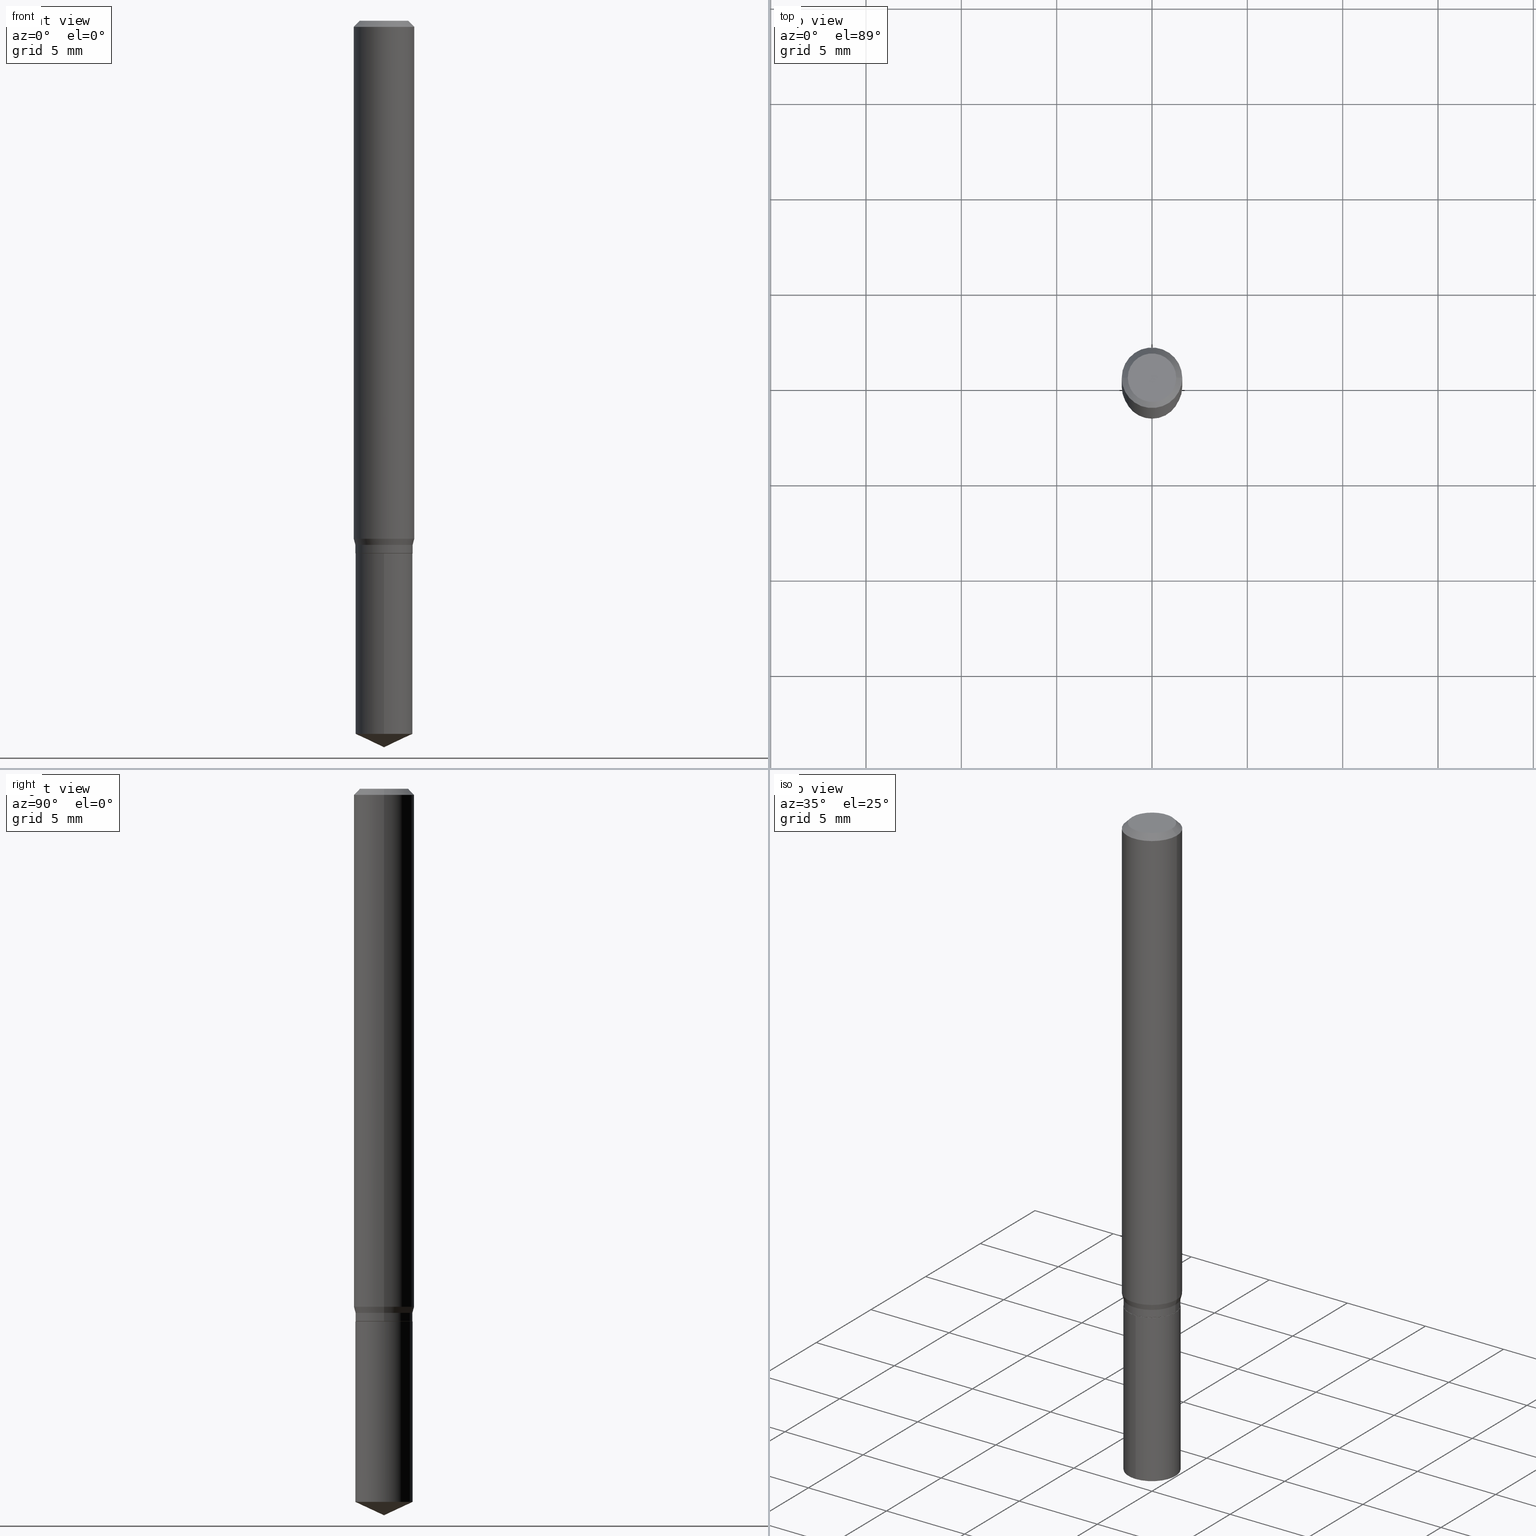
[diagram: canonical four-view strip — front | top / right | iso, engineering-drawing reading convention]
A machine part, canonical four-view strip (front | top / right | iso — engineering-drawing reading convention). The complete STEP part file that produces these views, byte-faithful:
ISO-10303-21;
HEADER;
FILE_DESCRIPTION (( 'STEP AP203' ),
    '1' );
FILE_NAME ('07394.STEP',
    '2024-04-23T21:01:14',
    ( '' ),
    ( '' ),
    'SwSTEP 2.0',
    'SolidWorks 2023',
    '' );
FILE_SCHEMA (( 'CONFIG_CONTROL_DESIGN' ));
ENDSEC;

DATA;
#1 = DIRECTION ( 'NONE',  ( -2.445468806185136877E-29, 3.491481338843145188E-15, 1.000000000000000000 ) ) ;
#2 = CARTESIAN_POINT ( 'NONE',  ( 0.05904999999999999832, -4.251227678175412729E-15, -1.099499999999999922 ) ) ;
#3 = LINE ( 'NONE', #219, #316 ) ;
#4 =( GEOMETRIC_REPRESENTATION_CONTEXT ( 3 ) GLOBAL_UNCERTAINTY_ASSIGNED_CONTEXT ( ( #320 ) ) GLOBAL_UNIT_ASSIGNED_CONTEXT ( ( #292, #488, #180 ) ) REPRESENTATION_CONTEXT ( 'NONE', 'WORKASPACE' ) );
#5 = DIRECTION ( 'NONE',  ( 0.2588190451025207395, 1.565188264969626109E-15, 0.9659258262890682012 ) ) ;
#6 = APPLICATION_CONTEXT ( 'configuration controlled 3d designs of mechanical parts and assemblies' ) ;
#7 = EDGE_CURVE ( 'NONE', #168, #473, #228, .T. ) ;
#8 = CARTESIAN_POINT ( 'NONE',  ( 3.893286209682126177E-47, -5.558580879666067980E-33, -1.592040838891559689E-18 ) ) ;
#9 = EDGE_CURVE ( 'NONE', #143, #434, #209, .T. ) ;
#10 = EDGE_CURVE ( 'NONE', #479, #210, #298, .T. ) ;
#11 = CARTESIAN_POINT ( 'NONE',  ( -0.04999999999999999584, 3.709698922520826725E-16, -1.592040838894077649E-18 ) ) ;
#12 = VECTOR ( 'NONE', #120, 39.37007874015748143 ) ;
#13 = PLANE ( 'NONE',  #93 ) ;
#14 = CARTESIAN_POINT ( 'NONE',  ( -0.06250000000000006939, 4.440892098500631092E-16, -3.074334431409319267E-30 ) ) ;
#15 = DIRECTION ( 'NONE',  ( -6.982962677686265922E-15, -1.000000000000000000, 4.626330217890369336E-15 ) ) ;
#16 = DIRECTION ( 'NONE',  ( -2.445468806185136597E-29, 3.491481338843145583E-15, 1.000000000000000000 ) ) ;
#17 = CONICAL_SURFACE ( 'NONE', #380, 84.42940631927396566, 1.134464013796314230 ) ;
#18 = CIRCLE ( 'NONE', #446, 0.05904999999999999832 ) ;
#19 = CC_DESIGN_PERSON_AND_ORGANIZATION_ASSIGNMENT ( #363, #65, ( #373 ) ) ;
#20 = DIRECTION ( 'NONE',  ( 2.445399690415121250E-29, -3.491580316559632610E-15, -1.000000000000000000 ) ) ;
#21 = VERTEX_POINT ( 'NONE', #2 ) ;
#22 = EDGE_CURVE ( 'NONE', #448, #328, #306, .T. ) ;
#23 = FACE_OUTER_BOUND ( 'NONE', #311, .T. ) ;
#24 = VERTEX_POINT ( 'NONE', #148 ) ;
#25 = PERSON_AND_ORGANIZATION_ROLE ( 'design_supplier' ) ;
#26 = CARTESIAN_POINT ( 'NONE',  ( 2.690015686803650369E-29, -3.840629472727460101E-15, -1.100000000000000089 ) ) ;
#27 = EDGE_LOOP ( 'NONE', ( #490, #132, #353, #453 ) ) ;
#28 = DIRECTION ( 'NONE',  ( -2.438088387897960049E-29, 3.491481338843145188E-15, 1.000000000000000000 ) ) ;
#29 = ORIENTED_EDGE ( 'NONE', *, *, #424, .T. ) ;
#30 = DATE_TIME_ROLE ( 'classification_date' ) ;
#31 = CARTESIAN_POINT ( 'NONE',  ( -0.05854999999999999788, -3.421957473765810306E-15, -1.100000000000000089 ) ) ;
#32 = ORIENTED_EDGE ( 'NONE', *, *, #319, .F. ) ;
#33 = APPROVAL_DATE_TIME ( #393, #379 ) ;
#34 = FACE_OUTER_BOUND ( 'NONE', #70, .T. ) ;
#35 = ORIENTED_EDGE ( 'NONE', *, *, #22, .F. ) ;
#36 = ORIENTED_EDGE ( 'NONE', *, *, #460, .F. ) ;
#37 = DIRECTION ( 'NONE',  ( 0.000000000000000000, 0.000000000000000000, 1.000000000000000000 ) ) ;
#38 = DIRECTION ( 'NONE',  ( -2.445468806185136597E-29, 3.491481338843145583E-15, 1.000000000000000000 ) ) ;
#39 = DIRECTION ( 'NONE',  ( 2.445468806185136597E-29, -3.491481338843145583E-15, -1.000000000000000000 ) ) ;
#40 = AXIS2_PLACEMENT_3D ( 'NONE', #459, #38, #177 ) ;
#41 = APPROVAL_PERSON_ORGANIZATION ( #130, #379, #277 ) ;
#42 = ADVANCED_FACE ( 'NONE', ( #262 ), #301, .T. ) ;
#43 = DIRECTION ( 'NONE',  ( 1.000000000000000000, -6.982962677686265133E-15, 0.000000000000000000 ) ) ;
#44 = DIRECTION ( 'NONE',  ( -2.445468806185136597E-29, 3.491481338843145583E-15, 1.000000000000000000 ) ) ;
#45 = EDGE_CURVE ( 'NONE', #94, #21, #403, .T. ) ;
#46 = DIRECTION ( 'NONE',  ( 0.7071067811865453523, -7.319954787623248157E-15, -0.7071067811865496822 ) ) ;
#47 = CIRCLE ( 'NONE', #429, 0.06250000000000000000 ) ;
#48 = DIRECTION ( 'NONE',  ( -2.445468806185136597E-29, 3.491481338843145583E-15, 1.000000000000000000 ) ) ;
#49 = VECTOR ( 'NONE', #1, 39.37007874015748143 ) ;
#50 = CYLINDRICAL_SURFACE ( 'NONE', #158, 0.05904999999999999832 ) ;
#51 = DIRECTION ( 'NONE',  ( -6.982962677686265922E-15, -1.000000000000000000, 4.626330217890369336E-15 ) ) ;
#52 = CARTESIAN_POINT ( 'NONE',  ( 3.056836007731440539E-31, -4.364351673553960451E-17, -0.01250000000000008049 ) ) ;
#53 = AXIS2_PLACEMENT_3D ( 'NONE', #73, #334, #289 ) ;
#54 = CIRCLE ( 'NONE', #360, 0.05904999999999999832 ) ;
#55 = EDGE_CURVE ( 'NONE', #328, #318, #261, .T. ) ;
#56 = DIRECTION ( 'NONE',  ( 1.000000000000000000, -6.982962677686264344E-15, 0.000000000000000000 ) ) ;
#57 = ORIENTED_EDGE ( 'NONE', *, *, #272, .F. ) ;
#58 = LINE ( 'NONE', #485, #95 ) ;
#59 = ORIENTED_EDGE ( 'NONE', *, *, #319, .T. ) ;
#60 = CALENDAR_DATE ( 2024, 23, 4 ) ;
#61 = DIRECTION ( 'NONE',  ( -2.445399690415121530E-29, 3.491580316559632610E-15, 1.000000000000000000 ) ) ;
#62 = EDGE_CURVE ( 'NONE', #318, #362, #104, .T. ) ;
#63 = ORIENTED_EDGE ( 'NONE', *, *, #201, .T. ) ;
#64 = CC_DESIGN_APPROVAL ( #416, ( #332 ) ) ;
#65 = PERSON_AND_ORGANIZATION_ROLE ( 'design_owner' ) ;
#66 = CARTESIAN_POINT ( 'NONE',  ( 0.000000000000000000, 0.000000000000000000, 0.000000000000000000 ) ) ;
#67 = EDGE_LOOP ( 'NONE', ( #413, #59, #377, #273 ) ) ;
#68 = APPROVAL_STATUS ( 'not_yet_approved' ) ;
#69 = LENGTH_MEASURE_WITH_UNIT ( LENGTH_MEASURE( 0.02539999999999999897 ), #371 );
#70 = EDGE_LOOP ( 'NONE', ( #242, #381, #214, #35 ) ) ;
#71 = EDGE_CURVE ( 'NONE', #210, #24, #186, .T. ) ;
#72 = CARTESIAN_POINT ( 'NONE',  ( 3.668099535622682715E-29, -5.237370474839449507E-15, -1.500000000000000222 ) ) ;
#73 = CARTESIAN_POINT ( 'NONE',  ( 2.688792952400557567E-29, -3.838883732058038598E-15, -1.099499999999999922 ) ) ;
#74 = VECTOR ( 'NONE', #154, 39.37007874015748143 ) ;
#75 = LOCAL_TIME ( 17, 1, 14.00000000000000000, #408 ) ;
#76 = ORIENTED_EDGE ( 'NONE', *, *, #411, .F. ) ;
#77 = EDGE_CURVE ( 'NONE', #362, #318, #113, .T. ) ;
#78 = CARTESIAN_POINT ( 'NONE',  ( 4.195754854663751396E-16, 0.05904999999999614724, -1.100000000000000311 ) ) ;
#79 = CC_DESIGN_DATE_AND_TIME_ASSIGNMENT ( #365, #30, ( #382 ) ) ;
#80 = DIRECTION ( 'NONE',  ( -2.445468806185136597E-29, 3.491481338843145583E-15, 1.000000000000000000 ) ) ;
#81 = ADVANCED_FACE ( 'NONE', ( #87 ), #17, .T. ) ;
#82 = DIRECTION ( 'NONE',  ( -2.445468806185136597E-29, 3.491481338843145583E-15, 1.000000000000000000 ) ) ;
#83 = CONICAL_SURFACE ( 'NONE', #420, 0.05904999999999999832, 0.2617993877991494633 ) ;
#84 = VECTOR ( 'NONE', #139, 39.37007874015748854 ) ;
#85 = DIRECTION ( 'NONE',  ( -6.982962677686267499E-15, -1.000000000000000000, 3.520397390770469253E-15 ) ) ;
#86 = FACE_OUTER_BOUND ( 'NONE', #258, .T. ) ;
#87 = FACE_OUTER_BOUND ( 'NONE', #135, .T. ) ;
#88 = AXIS2_PLACEMENT_3D ( 'NONE', #267, #465, #340 ) ;
#89 = DIRECTION ( 'NONE',  ( -6.982962677686267499E-15, -1.000000000000000000, 3.520397390770469253E-15 ) ) ;
#90 = CARTESIAN_POINT ( 'NONE',  ( 2.688792952400557567E-29, -3.838883732058038598E-15, -1.099499999999999922 ) ) ;
#91 = CARTESIAN_POINT ( 'NONE',  ( -0.05854999999999999788, -3.424606700939921901E-15, -1.100000000000000089 ) ) ;
#92 = CYLINDRICAL_SURFACE ( 'NONE', #374, 0.06250000000000006939 ) ;
#93 = AXIS2_PLACEMENT_3D ( 'NONE', #192, #189, #384 ) ;
#94 = VERTEX_POINT ( 'NONE', #425 ) ;
#95 = VECTOR ( 'NONE', #166, 39.37007874015748854 ) ;
#96 = COORDINATED_UNIVERSAL_TIME_OFFSET ( 5, 0, .BEHIND. ) ;
#97 = CARTESIAN_POINT ( 'NONE',  ( 0.06250000000000012490, -4.170310589546995450E-15, -1.069424424713886879 ) ) ;
#98 = EDGE_LOOP ( 'NONE', ( #322, #415, #29, #291 ) ) ;
#99 = DATE_AND_TIME ( #60, #75 ) ;
#100 = DIRECTION ( 'NONE',  ( -2.445468806185136597E-29, 3.491481338843145583E-15, 1.000000000000000000 ) ) ;
#101 = ORIENTED_EDGE ( 'NONE', *, *, #227, .T. ) ;
#102 = CARTESIAN_POINT ( 'NONE',  ( 3.600840339969019464E-29, -5.141119304019454113E-15, -1.472464532785947355 ) ) ;
#103 = ORIENTED_EDGE ( 'NONE', *, *, #213, .T. ) ;
#104 = CIRCLE ( 'NONE', #294, 0.06250000000000012490 ) ;
#105 = VECTOR ( 'NONE', #123, 39.37007874015748143 ) ;
#106 = APPROVAL_DATE_TIME ( #125, #164 ) ;
#107 = ORIENTED_EDGE ( 'NONE', *, *, #462, .F. ) ;
#108 = CARTESIAN_POINT ( 'NONE',  ( -4.123439461173471128E-16, -0.05905000000000384247, -1.099999999999999645 ) ) ;
#109 = ORIENTED_EDGE ( 'NONE', *, *, #388, .F. ) ;
#110 = CARTESIAN_POINT ( 'NONE',  ( 3.668099535622682155E-29, -5.237370474839448718E-15, -1.500000000000000222 ) ) ;
#111 = DIRECTION ( 'NONE',  ( -2.445468806185136597E-29, 3.491481338843145583E-15, 1.000000000000000000 ) ) ;
#112 = ORIENTED_EDGE ( 'NONE', *, *, #10, .F. ) ;
#113 = CIRCLE ( 'NONE', #157, 0.06250000000000012490 ) ;
#114 = PRODUCT_DEFINITION_FORMATION_WITH_SPECIFIED_SOURCE ( 'ANY', '', #373, .NOT_KNOWN. ) ;
#115 = CARTESIAN_POINT ( 'NONE',  ( 3.056836007731440539E-31, -4.364351673553960451E-17, -0.01250000000000008049 ) ) ;
#116 = CARTESIAN_POINT ( 'NONE',  ( 0.05854999999999999788, -4.249481937505991226E-15, -1.100000000000000089 ) ) ;
#117 = CARTESIAN_POINT ( 'NONE',  ( 2.690015686803650369E-29, -3.840629472727460101E-15, -1.100000000000000089 ) ) ;
#118 = CLOSED_SHELL ( 'NONE', ( #478, #418, #385, #451, #369, #464, #140, #390, #42, #193, #432, #309 ) ) ;
#119 = ORGANIZATION ( 'UNSPECIFIED', 'UNSPECIFIED', '' ) ;
#120 = DIRECTION ( 'NONE',  ( -2.445468806185136877E-29, 3.491481338843145188E-15, 1.000000000000000000 ) ) ;
#121 = AXIS2_PLACEMENT_3D ( 'NONE', #472, #126, #275 ) ;
#122 = DIRECTION ( 'NONE',  ( -2.445468806185136597E-29, 3.491481338843145583E-15, 1.000000000000000000 ) ) ;
#123 = DIRECTION ( 'NONE',  ( -0.7071067811865453523, 2.468850131082234184E-15, -0.7071067811865496822 ) ) ;
#124 = ORIENTED_EDGE ( 'NONE', *, *, #7, .F. ) ;
#125 = DATE_AND_TIME ( #358, #153 ) ;
#126 = DIRECTION ( 'NONE',  ( -2.445468806185136597E-29, 3.491481338843145583E-15, 1.000000000000000000 ) ) ;
#127 = CIRCLE ( 'NONE', #359, 0.05904999999999999832 ) ;
#128 = ORIENTED_EDGE ( 'NONE', *, *, #71, .F. ) ;
#129 = LOCAL_TIME ( 17, 1, 14.00000000000000000, #243 ) ;
#130 = PERSON_AND_ORGANIZATION ( #205, #119 ) ;
#131 = DIRECTION ( 'NONE',  ( 1.000000000000000000, -6.982962677686266711E-15, 4.876176775795935793E-29 ) ) ;
#132 = ORIENTED_EDGE ( 'NONE', *, *, #370, .T. ) ;
#133 = DESIGN_CONTEXT ( 'detailed design', #288, 'design' ) ;
#134 = CARTESIAN_POINT ( 'NONE',  ( -0.05904999999999999832, -3.389281507077648455E-15, -1.082300000000000040 ) ) ;
#135 = EDGE_LOOP ( 'NONE', ( #112, #489, #200 ) ) ;
#136 = DIRECTION ( 'NONE',  ( -6.982962677686265922E-15, -1.000000000000000000, 4.626330217890369336E-15 ) ) ;
#137 = ORIENTED_EDGE ( 'NONE', *, *, #426, .T. ) ;
#138 = AXIS2_PLACEMENT_3D ( 'NONE', #431, #61, #352 ) ;
#139 = DIRECTION ( 'NONE',  ( 0.7071067811865232589, -2.468850131082003836E-15, 0.7071067811865715536 ) ) ;
#140 = ADVANCED_FACE ( 'NONE', ( #86 ), #83, .T. ) ;
#141 = DIRECTION ( 'NONE',  ( -1.000000000000000000, 6.982962677686266711E-15, 0.000000000000000000 ) ) ;
#142 = DIRECTION ( 'NONE',  ( -2.445468806185136597E-29, 3.491481338843145583E-15, 1.000000000000000000 ) ) ;
#143 = VERTEX_POINT ( 'NONE', #11 ) ;
#144 = VERTEX_POINT ( 'NONE', #391 ) ;
#145 = VECTOR ( 'NONE', #256, 39.37007874015748143 ) ;
#146 = AXIS2_PLACEMENT_3D ( 'NONE', #356, #199, #56 ) ;
#147 = CARTESIAN_POINT ( 'NONE',  ( 0.06250000000000000000, -4.800786840909312308E-16, -0.01250000000000008049 ) ) ;
#148 = CARTESIAN_POINT ( 'NONE',  ( -4.123439461173471128E-16, -0.05905000000000384247, -1.099999999999999645 ) ) ;
#149 = ORIENTED_EDGE ( 'NONE', *, *, #426, .F. ) ;
#150 = LINE ( 'NONE', #14, #74 ) ;
#151 = CIRCLE ( 'NONE', #221, 0.05904999999999999832 ) ;
#152 = EDGE_CURVE ( 'NONE', #24, #461, #455, .T. ) ;
#153 = LOCAL_TIME ( 17, 1, 14.00000000000000000, #206 ) ;
#154 = DIRECTION ( 'NONE',  ( -2.445468806185136877E-29, 3.491481338843145188E-15, 1.000000000000000000 ) ) ;
#155 = DIRECTION ( 'NONE',  ( -2.445468806185136597E-29, 3.491481338843145583E-15, 1.000000000000000000 ) ) ;
#156 = CARTESIAN_POINT ( 'NONE',  ( 0.05904999999999999832, -4.123439461173740327E-16, 2.879382386107500220E-30 ) ) ;
#157 = AXIS2_PLACEMENT_3D ( 'NONE', #337, #16, #265 ) ;
#158 = AXIS2_PLACEMENT_3D ( 'NONE', #194, #343, #15 ) ;
#159 = DIRECTION ( 'NONE',  ( 1.000000000000000000, -6.982962677686265133E-15, 0.000000000000000000 ) ) ;
#160 = CYLINDRICAL_SURFACE ( 'NONE', #475, 0.06250000000000006939 ) ;
#161 = EDGE_LOOP ( 'NONE', ( #313, #101, #329, #57 ) ) ;
#162 = CYLINDRICAL_SURFACE ( 'NONE', #179, 0.05904999999999999832 ) ;
#163 = ORIENTED_EDGE ( 'NONE', *, *, #471, .T. ) ;
#164 = APPROVAL ( #325, 'UNSPECIFIED' ) ;
#165 = PERSON_AND_ORGANIZATION_ROLE ( 'classification_officer' ) ;
#166 = DIRECTION ( 'NONE',  ( -0.2588190451025207395, 5.211531920934546309E-15, 0.9659258262890682012 ) ) ;
#167 = AXIS2_PLACEMENT_3D ( 'NONE', #378, #39, #141 ) ;
#168 = VERTEX_POINT ( 'NONE', #386 ) ;
#169 = CONICAL_SURFACE ( 'NONE', #327, 0.05854999999999999788, 0.7853981633974141952 ) ;
#170 = PERSON_AND_ORGANIZATION ( #205, #119 ) ;
#171 = DIRECTION ( 'NONE',  ( -6.982962677686265922E-15, -1.000000000000000000, 4.626330217890369336E-15 ) ) ;
#172 = ORIENTED_EDGE ( 'NONE', *, *, #77, .T. ) ;
#173 = EDGE_CURVE ( 'NONE', #461, #24, #274, .T. ) ;
#174 = DIRECTION ( 'NONE',  ( -2.445399690415121530E-29, 3.491580316559632610E-15, 1.000000000000000000 ) ) ;
#175 = EDGE_LOOP ( 'NONE', ( #109, #357 ) ) ;
#176 = DIRECTION ( 'NONE',  ( 1.000000000000000000, -6.982962677686266711E-15, 4.876176775795936353E-29 ) ) ;
#177 = DIRECTION ( 'NONE',  ( 1.000000000000000000, -6.982962677686266711E-15, 0.000000000000000000 ) ) ;
#178 = AXIS2_PLACEMENT_3D ( 'NONE', #8, #111, #182 ) ;
#179 = AXIS2_PLACEMENT_3D ( 'NONE', #437, #100, #249 ) ;
#180 =( NAMED_UNIT ( * ) SI_UNIT ( $, .STERADIAN. ) SOLID_ANGLE_UNIT ( ) );
#181 = ORIENTED_EDGE ( 'NONE', *, *, #460, .T. ) ;
#182 = DIRECTION ( 'NONE',  ( 1.000000000000000000, -6.982962677686265922E-15, 4.875957971899673662E-29 ) ) ;
#183 = APPLICATION_PROTOCOL_DEFINITION ( 'international standard', 'config_control_design', 1994, #6 ) ;
#184 = ORIENTED_EDGE ( 'NONE', *, *, #266, .F. ) ;
#185 = VECTOR ( 'NONE', #5, 39.37007874015748854 ) ;
#186 = LINE ( 'NONE', #108, #145 ) ;
#187 = CC_DESIGN_DATE_AND_TIME_ASSIGNMENT ( #99, #399, ( #332 ) ) ;
#188 = DIRECTION ( 'NONE',  ( 1.000000000000000000, -6.982962677686264344E-15, 0.000000000000000000 ) ) ;
#189 = DIRECTION ( 'NONE',  ( 2.438088387897960049E-29, -3.491481338843145188E-15, -1.000000000000000000 ) ) ;
#190 = CONICAL_SURFACE ( 'NONE', #474, 84.42940631927396566, 1.134464013796314230 ) ;
#191 = VECTOR ( 'NONE', #230, 39.37007874015748143 ) ;
#192 = CARTESIAN_POINT ( 'NONE',  ( 1.946643104841063088E-47, -2.779290439833033990E-33, -7.960204194457798443E-19 ) ) ;
#193 = ADVANCED_FACE ( 'NONE', ( #195 ), #13, .F. ) ;
#194 = CARTESIAN_POINT ( 'NONE',  ( 2.690015686803650369E-29, -3.840629472727460101E-15, -1.100000000000000089 ) ) ;
#195 = FACE_OUTER_BOUND ( 'NONE', #299, .T. ) ;
#196 = VECTOR ( 'NONE', #46, 39.37007874015748143 ) ;
#197 = LINE ( 'NONE', #91, #456 ) ;
#198 = PERSON_AND_ORGANIZATION ( #205, #119 ) ;
#199 = DIRECTION ( 'NONE',  ( -2.445468806185136597E-29, 3.491481338843145583E-15, 1.000000000000000000 ) ) ;
#200 = ORIENTED_EDGE ( 'NONE', *, *, #346, .F. ) ;
#201 = EDGE_CURVE ( 'NONE', #434, #473, #342, .T. ) ;
#202 = APPROVAL_STATUS ( 'not_yet_approved' ) ;
#203 = FACE_OUTER_BOUND ( 'NONE', #419, .T. ) ;
#204 = ORIENTED_EDGE ( 'NONE', *, *, #152, .F. ) ;
#205 = PERSON ( 'UNSPECIFIED', 'UNSPECIFIED', 'UNSPECIFIED', ('UNSPECIFIED'), ('UNSPECIFIED'), ('UNSPECIFIED') ) ;
#206 = COORDINATED_UNIVERSAL_TIME_OFFSET ( 5, 0, .BEHIND. ) ;
#207 = PLANE ( 'NONE',  #341 ) ;
#208 = EDGE_CURVE ( 'NONE', #362, #168, #150, .T. ) ;
#209 = CIRCLE ( 'NONE', #178, 0.04999999999999999584 ) ;
#210 = VERTEX_POINT ( 'NONE', #466 ) ;
#211 = DATE_AND_TIME ( #252, #404 ) ;
#212 = FACE_OUTER_BOUND ( 'NONE', #175, .T. ) ;
#213 = EDGE_CURVE ( 'NONE', #324, #217, #347, .T. ) ;
#214 = ORIENTED_EDGE ( 'NONE', *, *, #272, .T. ) ;
#215 = CALENDAR_DATE ( 2024, 23, 4 ) ;
#216 = DIRECTION ( 'NONE',  ( 1.000000000000000000, -6.982962677686265133E-15, 0.000000000000000000 ) ) ;
#217 = VERTEX_POINT ( 'NONE', #116 ) ;
#218 = EDGE_CURVE ( 'NONE', #21, #94, #151, .T. ) ;
#219 = CARTESIAN_POINT ( 'NONE',  ( 3.668252923656895710E-29, -5.237152723863177100E-15, -1.500000000000000222 ) ) ;
#220 = ORIENTED_EDGE ( 'NONE', *, *, #22, .T. ) ;
#221 = AXIS2_PLACEMENT_3D ( 'NONE', #90, #308, #159 ) ;
#222 = CIRCLE ( 'NONE', #146, 0.05854999999999999788 ) ;
#223 = CARTESIAN_POINT ( 'NONE',  ( 0.000000000000000000, 0.000000000000000000, 0.000000000000000000 ) ) ;
#224 = EDGE_LOOP ( 'NONE', ( #149, #63, #398, #285 ) ) ;
#225 = DIRECTION ( 'NONE',  ( -2.445399690415121810E-29, 3.491580316559632610E-15, 1.000000000000000000 ) ) ;
#226 = DIRECTION ( 'NONE',  ( 1.000000000000000000, -6.982962677686264344E-15, 0.000000000000000000 ) ) ;
#227 = EDGE_CURVE ( 'NONE', #94, #448, #304, .T. ) ;
#228 = CIRCLE ( 'NONE', #40, 0.06250000000000000000 ) ;
#229 = CONICAL_SURFACE ( 'NONE', #240, 0.05904999999999999832, 0.2617993877991494633 ) ;
#230 = DIRECTION ( 'NONE',  ( -2.445468806185136877E-29, 3.491481338843145188E-15, 1.000000000000000000 ) ) ;
#231 = ADVANCED_FACE ( 'NONE', ( #427 ), #190, .T. ) ;
#232 = DIRECTION ( 'NONE',  ( -2.445399690415121530E-29, 3.491580316559632610E-15, 1.000000000000000000 ) ) ;
#233 = CARTESIAN_POINT ( 'NONE',  ( 2.646730888934173716E-29, -3.778830253029936509E-15, -1.082300000000000040 ) ) ;
#234 = CONICAL_SURFACE ( 'NONE', #468, 0.06250000000000000000, 0.7853981633974452814 ) ;
#235 = DIRECTION ( 'NONE',  ( 1.000000000000000000, -6.982962677686265133E-15, 0.000000000000000000 ) ) ;
#236 = CARTESIAN_POINT ( 'NONE',  ( -9.260740279983036507E-28, 1.322265303911854087E-13, 37.87007874015748143 ) ) ;
#237 = DIRECTION ( 'NONE',  ( -0.7071067811865232589, 7.493145998870265808E-15, 0.7071067811865715536 ) ) ;
#238 = COORDINATED_UNIVERSAL_TIME_OFFSET ( 5, 0, .BEHIND. ) ;
#239 = AXIS2_PLACEMENT_3D ( 'NONE', #117, #339, #51 ) ;
#240 = AXIS2_PLACEMENT_3D ( 'NONE', #326, #142, #216 ) ;
#241 = CARTESIAN_POINT ( 'NONE',  ( 3.600840339969019464E-29, -5.141119304019454113E-15, -1.472464532785947355 ) ) ;
#242 = ORIENTED_EDGE ( 'NONE', *, *, #227, .F. ) ;
#243 = COORDINATED_UNIVERSAL_TIME_OFFSET ( 5, 0, .BEHIND. ) ;
#244 = DIRECTION ( 'NONE',  ( -2.445468806185136597E-29, 3.491481338843145583E-15, 1.000000000000000000 ) ) ;
#245 = ORIENTED_EDGE ( 'NONE', *, *, #45, .F. ) ;
#246 = EDGE_CURVE ( 'NONE', #328, #448, #127, .T. ) ;
#247 = FACE_OUTER_BOUND ( 'NONE', #438, .T. ) ;
#248 = ORIENTED_EDGE ( 'NONE', *, *, #152, .T. ) ;
#249 = DIRECTION ( 'NONE',  ( 1.000000000000000000, -6.982962677686266711E-15, 4.876176775795936353E-29 ) ) ;
#250 = CC_DESIGN_APPROVAL ( #379, ( #382 ) ) ;
#251 = ORIENTED_EDGE ( 'NONE', *, *, #10, .T. ) ;
#252 = CALENDAR_DATE ( 2024, 23, 4 ) ;
#253 = LINE ( 'NONE', #458, #422 ) ;
#254 = ORIENTED_EDGE ( 'NONE', *, *, #55, .T. ) ;
#255 = DIRECTION ( 'NONE',  ( -2.445468806185136597E-29, 3.491481338843145583E-15, 1.000000000000000000 ) ) ;
#256 = DIRECTION ( 'NONE',  ( -2.445399690415121810E-29, 3.491580316559632610E-15, 1.000000000000000000 ) ) ;
#257 = CYLINDRICAL_SURFACE ( 'NONE', #263, 0.05904999999999999832 ) ;
#258 = EDGE_LOOP ( 'NONE', ( #32, #220, #254, #440 ) ) ;
#259 = CIRCLE ( 'NONE', #121, 0.04999999999999999584 ) ;
#260 = CARTESIAN_POINT ( 'NONE',  ( 2.646730888934173716E-29, -3.778830253029936509E-15, -1.082300000000000040 ) ) ;
#261 = LINE ( 'NONE', #421, #185 ) ;
#262 = FACE_OUTER_BOUND ( 'NONE', #98, .T. ) ;
#263 = AXIS2_PLACEMENT_3D ( 'NONE', #412, #255, #176 ) ;
#264 = FACE_OUTER_BOUND ( 'NONE', #27, .T. ) ;
#265 = DIRECTION ( 'NONE',  ( 1.000000000000000000, -6.982962677686264344E-15, 0.000000000000000000 ) ) ;
#266 = EDGE_CURVE ( 'NONE', #473, #168, #47, .T. ) ;
#267 = CARTESIAN_POINT ( 'NONE',  ( 2.690015686803650369E-29, -3.840629472727460101E-15, -1.100000000000000089 ) ) ;
#268 = APPROVAL_PERSON_ORGANIZATION ( #476, #416, #280 ) ;
#269 = LINE ( 'NONE', #156, #191 ) ;
#270 = ADVANCED_FACE ( 'NONE', ( #264 ), #50, .T. ) ;
#271 = DIRECTION ( 'NONE',  ( -2.445468806185136597E-29, 3.491481338843145583E-15, 1.000000000000000000 ) ) ;
#272 = EDGE_CURVE ( 'NONE', #21, #328, #269, .T. ) ;
#273 = ORIENTED_EDGE ( 'NONE', *, *, #55, .F. ) ;
#274 = CIRCLE ( 'NONE', #88, 0.05904999999999999832 ) ;
#275 = DIRECTION ( 'NONE',  ( 1.000000000000000000, -6.982962677686265922E-15, 4.875957971899673662E-29 ) ) ;
#276 = ORIENTED_EDGE ( 'NONE', *, *, #411, .T. ) ;
#277 = APPROVAL_ROLE ( '' ) ;
#278 = DIRECTION ( 'NONE',  ( 6.982962677686265922E-15, 1.000000000000000000, -3.491580316559632610E-15 ) ) ;
#279 = ORIENTED_EDGE ( 'NONE', *, *, #208, .T. ) ;
#280 = APPROVAL_ROLE ( '' ) ;
#281 = FACE_OUTER_BOUND ( 'NONE', #67, .T. ) ;
#282 = ORIENTED_EDGE ( 'NONE', *, *, #218, .F. ) ;
#283 = CALENDAR_DATE ( 2024, 23, 4 ) ;
#284 = LINE ( 'NONE', #367, #84 ) ;
#285 = ORIENTED_EDGE ( 'NONE', *, *, #424, .F. ) ;
#286 = APPROVAL_ROLE ( '' ) ;
#287 = CARTESIAN_POINT ( 'NONE',  ( 2.690015686803650369E-29, -3.840629472727460101E-15, -1.100000000000000089 ) ) ;
#288 = APPLICATION_CONTEXT ( 'configuration controlled 3d designs of mechanical parts and assemblies' ) ;
#289 = DIRECTION ( 'NONE',  ( 1.000000000000000000, -6.982962677686265133E-15, 0.000000000000000000 ) ) ;
#290 = MECHANICAL_CONTEXT ( 'NONE', #6, 'mechanical' ) ;
#291 = ORIENTED_EDGE ( 'NONE', *, *, #7, .T. ) ;
#292 =( CONVERSION_BASED_UNIT ( 'INCH', #69 ) LENGTH_UNIT ( ) NAMED_UNIT ( #335 ) );
#293 = ORIENTED_EDGE ( 'NONE', *, *, #9, .T. ) ;
#294 = AXIS2_PLACEMENT_3D ( 'NONE', #452, #82, #226 ) ;
#295 = PRODUCT_DEFINITION_SHAPE ( 'NONE', 'NONE',  #332 ) ;
#296 = AXIS2_PLACEMENT_3D ( 'NONE', #26, #20, #278 ) ;
#297 = DIRECTION ( 'NONE',  ( -2.445468806185136597E-29, 3.491481338843145583E-15, 1.000000000000000000 ) ) ;
#298 = LINE ( 'NONE', #110, #387 ) ;
#299 = EDGE_LOOP ( 'NONE', ( #293, #137 ) ) ;
#300 = DIRECTION ( 'NONE',  ( 1.000000000000000000, -6.982962677686264344E-15, 0.000000000000000000 ) ) ;
#301 = CONICAL_SURFACE ( 'NONE', #167, 0.06250000000000000000, 0.7853981633974452814 ) ;
#302 = APPROVAL_PERSON_ORGANIZATION ( #449, #164, #286 ) ;
#303 = CARTESIAN_POINT ( 'NONE',  ( 2.690015686803650369E-29, -3.840629472727460101E-15, -1.100000000000000089 ) ) ;
#304 = LINE ( 'NONE', #463, #12 ) ;
#305 = CARTESIAN_POINT ( 'NONE',  ( -9.260740279983036507E-28, 1.322265303911854087E-13, 37.87007874015748143 ) ) ;
#306 = CIRCLE ( 'NONE', #315, 0.05904999999999999832 ) ;
#307 = CC_DESIGN_SECURITY_CLASSIFICATION ( #382, ( #114 ) ) ;
#308 = DIRECTION ( 'NONE',  ( -2.445468806185136597E-29, 3.491481338843145583E-15, 1.000000000000000000 ) ) ;
#309 = ADVANCED_FACE ( 'NONE', ( #467 ), #414, .T. ) ;
#310 = DIRECTION ( 'NONE',  ( -2.445468806185136597E-29, 3.491481338843145583E-15, 1.000000000000000000 ) ) ;
#311 = EDGE_LOOP ( 'NONE', ( #395, #279, #184, #107 ) ) ;
#312 = CARTESIAN_POINT ( 'NONE',  ( -0.06250000000000000000, 3.927916506198521080E-16, -0.01250000000000008049 ) ) ;
#313 = ORIENTED_EDGE ( 'NONE', *, *, #218, .T. ) ;
#314 = PERSON_AND_ORGANIZATION_ROLE ( 'creator' ) ;
#315 = AXIS2_PLACEMENT_3D ( 'NONE', #260, #80, #43 ) ;
#316 = VECTOR ( 'NONE', #376, 39.37007874015748854 ) ;
#317 = FACE_OUTER_BOUND ( 'NONE', #482, .T. ) ;
#318 = VERTEX_POINT ( 'NONE', #97 ) ;
#319 = EDGE_CURVE ( 'NONE', #448, #362, #58, .T. ) ;
#320 = UNCERTAINTY_MEASURE_WITH_UNIT (LENGTH_MEASURE( 1.000000000000000082E-05 ), #292, 'distance_accuracy_value', 'NONE');
#321 = DIRECTION ( 'NONE',  ( 1.000000000000000000, -6.982962677686265922E-15, 4.876176775795935793E-29 ) ) ;
#322 = ORIENTED_EDGE ( 'NONE', *, *, #201, .F. ) ;
#323 = FACE_OUTER_BOUND ( 'NONE', #161, .T. ) ;
#324 = VERTEX_POINT ( 'NONE', #31 ) ;
#325 = APPROVAL_STATUS ( 'not_yet_approved' ) ;
#326 = CARTESIAN_POINT ( 'NONE',  ( 2.646730888934173716E-29, -3.778830253029936509E-15, -1.082300000000000040 ) ) ;
#327 = AXIS2_PLACEMENT_3D ( 'NONE', #287, #297, #454 ) ;
#328 = VERTEX_POINT ( 'NONE', #400 ) ;
#329 = ORIENTED_EDGE ( 'NONE', *, *, #246, .F. ) ;
#330 = DIRECTION ( 'NONE',  ( 1.000000000000000000, 0.000000000000000000, 0.000000000000000000 ) ) ;
#331 = DIRECTION ( 'NONE',  ( -6.328713451373368590E-15, -0.9063077870366484934, 0.4226182617407026054 ) ) ;
#332 = PRODUCT_DEFINITION ( 'UNKNOWN', '', #114, #133 ) ;
#333 = CLOSED_SHELL ( 'NONE', ( #351, #81, #231, #270, #338 ) ) ;
#334 = DIRECTION ( 'NONE',  ( -2.445468806185136597E-29, 3.491481338843145583E-15, 1.000000000000000000 ) ) ;
#335 = DIMENSIONAL_EXPONENTS ( 1.000000000000000000, 0.000000000000000000, 0.000000000000000000, 0.000000000000000000, 0.000000000000000000, 0.000000000000000000, 0.000000000000000000 ) ;
#336 = CC_DESIGN_APPROVAL ( #164, ( #114 ) ) ;
#337 = CARTESIAN_POINT ( 'NONE',  ( 2.615244071210295996E-29, -3.733875422191602991E-15, -1.069424424713886879 ) ) ;
#338 = ADVANCED_FACE ( 'NONE', ( #203 ), #349, .F. ) ;
#339 = DIRECTION ( 'NONE',  ( -2.445399690415121530E-29, 3.491580316559632610E-15, 1.000000000000000000 ) ) ;
#340 = DIRECTION ( 'NONE',  ( -6.982962677686265922E-15, -1.000000000000000000, 4.626330217890369336E-15 ) ) ;
#341 = AXIS2_PLACEMENT_3D ( 'NONE', #361, #28, #321 ) ;
#342 = LINE ( 'NONE', #423, #196 ) ;
#343 = DIRECTION ( 'NONE',  ( -2.445399690415121530E-29, 3.491580316559632610E-15, 1.000000000000000000 ) ) ;
#344 = CC_DESIGN_PERSON_AND_ORGANIZATION_ASSIGNMENT ( #441, #165, ( #382 ) ) ;
#345 = CARTESIAN_POINT ( 'NONE',  ( 2.646730888934173716E-29, -3.778830253029936509E-15, -1.082300000000000040 ) ) ;
#346 = EDGE_CURVE ( 'NONE', #210, #144, #54, .T. ) ;
#347 = CIRCLE ( 'NONE', #372, 0.05854999999999999788 ) ;
#348 = AXIS2_PLACEMENT_3D ( 'NONE', #383, #44, #188 ) ;
#349 = PLANE ( 'NONE',  #296 ) ;
#350 = ORIENTED_EDGE ( 'NONE', *, *, #346, .T. ) ;
#351 = ADVANCED_FACE ( 'NONE', ( #317 ), #439, .T. ) ;
#352 = DIRECTION ( 'NONE',  ( -6.982962677686265922E-15, -1.000000000000000000, 4.626330217890369336E-15 ) ) ;
#353 = ORIENTED_EDGE ( 'NONE', *, *, #71, .T. ) ;
#354 = PERSON_AND_ORGANIZATION_ROLE ( 'creator' ) ;
#355 = MANIFOLD_SOLID_BREP ( 'Body-Move/Copy2[2]', #118 ) ;
#356 = CARTESIAN_POINT ( 'NONE',  ( 2.690015686803650369E-29, -3.840629472727460101E-15, -1.100000000000000089 ) ) ;
#357 = ORIENTED_EDGE ( 'NONE', *, *, #213, .F. ) ;
#358 = CALENDAR_DATE ( 2024, 23, 4 ) ;
#359 = AXIS2_PLACEMENT_3D ( 'NONE', #345, #271, #235 ) ;
#360 = AXIS2_PLACEMENT_3D ( 'NONE', #102, #174, #136 ) ;
#361 = CARTESIAN_POINT ( 'NONE',  ( 2.690015686803650369E-29, -3.840629472727460101E-15, -1.100000000000000089 ) ) ;
#362 = VERTEX_POINT ( 'NONE', #406 ) ;
#363 = PERSON_AND_ORGANIZATION ( #205, #119 ) ;
#364 = EDGE_LOOP ( 'NONE', ( #407, #276, #282, #36 ) ) ;
#365 = DATE_AND_TIME ( #215, #129 ) ;
#366 = MANIFOLD_SOLID_BREP ( 'Body-Move/Copy2[1]', #333 ) ;
#367 = CARTESIAN_POINT ( 'NONE',  ( 0.05854999999999999788, -4.249481937505991226E-15, -1.100000000000000089 ) ) ;
#368 = ORIENTED_EDGE ( 'NONE', *, *, #462, .T. ) ;
#369 = ADVANCED_FACE ( 'NONE', ( #323 ), #162, .T. ) ;
#370 = EDGE_CURVE ( 'NONE', #144, #210, #18, .T. ) ;
#371 =( LENGTH_UNIT ( ) NAMED_UNIT ( * ) SI_UNIT ( $, .METRE. ) );
#372 = AXIS2_PLACEMENT_3D ( 'NONE', #303, #155, #300 ) ;
#373 = PRODUCT ( '07394', '07394', '', ( #290 ) ) ;
#374 = AXIS2_PLACEMENT_3D ( 'NONE', #477, #310, #131 ) ;
#375 = ORIENTED_EDGE ( 'NONE', *, *, #208, .F. ) ;
#376 = DIRECTION ( 'NONE',  ( 6.439704144417024831E-15, 0.9063077870366513800, 0.4226182617406963327 ) ) ;
#377 = ORIENTED_EDGE ( 'NONE', *, *, #62, .F. ) ;
#378 = CARTESIAN_POINT ( 'NONE',  ( 3.056836007731440539E-31, -4.364351673553960451E-17, -0.01250000000000008049 ) ) ;
#379 = APPROVAL ( #202, 'UNSPECIFIED' ) ;
#380 = AXIS2_PLACEMENT_3D ( 'NONE', #305, #232, #85 ) ;
#381 = ORIENTED_EDGE ( 'NONE', *, *, #45, .T. ) ;
#382 = SECURITY_CLASSIFICATION ( '', '', #402 ) ;
#383 = CARTESIAN_POINT ( 'NONE',  ( 2.690015686803650369E-29, -3.840629472727460101E-15, -1.100000000000000089 ) ) ;
#384 = DIRECTION ( 'NONE',  ( -1.000000000000000000, 6.982962677686265922E-15, -4.876176775795935793E-29 ) ) ;
#385 = ADVANCED_FACE ( 'NONE', ( #23 ), #160, .T. ) ;
#386 = CARTESIAN_POINT ( 'NONE',  ( -0.06250000000000000000, -1.444670259613507477E-15, -0.01250000000000008049 ) ) ;
#387 = VECTOR ( 'NONE', #331, 39.37007874015748143 ) ;
#388 = EDGE_CURVE ( 'NONE', #217, #324, #222, .T. ) ;
#389 = DIRECTION ( 'NONE',  ( 1.000000000000000000, -6.982962677686266711E-15, 0.000000000000000000 ) ) ;
#390 = ADVANCED_FACE ( 'NONE', ( #247 ), #92, .T. ) ;
#391 = CARTESIAN_POINT ( 'NONE',  ( 4.195754854663751889E-16, 0.05904999999999487048, -1.472464532785947799 ) ) ;
#392 = FACE_OUTER_BOUND ( 'NONE', #224, .T. ) ;
#393 = DATE_AND_TIME ( #283, #435 ) ;
#394 = LINE ( 'NONE', #312, #105 ) ;
#395 = ORIENTED_EDGE ( 'NONE', *, *, #62, .T. ) ;
#396 = DIRECTION ( 'NONE',  ( 1.000000000000000000, -6.982962677686266711E-15, 4.876176775795935793E-29 ) ) ;
#397 = CC_DESIGN_PERSON_AND_ORGANIZATION_ASSIGNMENT ( #484, #354, ( #114 ) ) ;
#398 = ORIENTED_EDGE ( 'NONE', *, *, #266, .T. ) ;
#399 = DATE_TIME_ROLE ( 'creation_date' ) ;
#400 = CARTESIAN_POINT ( 'NONE',  ( 0.05904999999999999832, -4.191174199147310640E-15, -1.082300000000000040 ) ) ;
#401 = EDGE_LOOP ( 'NONE', ( #76, #103, #181, #245 ) ) ;
#402 = SECURITY_CLASSIFICATION_LEVEL ( 'unclassified' ) ;
#403 = CIRCLE ( 'NONE', #53, 0.05904999999999999832 ) ;
#404 = LOCAL_TIME ( 17, 1, 14.00000000000000000, #96 ) ;
#405 = AXIS2_PLACEMENT_3D ( 'NONE', #223, #37, #330 ) ;
#406 = CARTESIAN_POINT ( 'NONE',  ( -0.06250000000000012490, -3.289786212341539192E-15, -1.069424424713886879 ) ) ;
#407 = ORIENTED_EDGE ( 'NONE', *, *, #388, .T. ) ;
#408 = COORDINATED_UNIVERSAL_TIME_OFFSET ( 5, 0, .BEHIND. ) ;
#409 = ORIENTED_EDGE ( 'NONE', *, *, #173, .T. ) ;
#410 = PRODUCT_RELATED_PRODUCT_CATEGORY ( 'detail', '', ( #373 ) ) ;
#411 = EDGE_CURVE ( 'NONE', #324, #94, #197, .T. ) ;
#412 = CARTESIAN_POINT ( 'NONE',  ( 0.000000000000000000, 0.000000000000000000, 0.000000000000000000 ) ) ;
#413 = ORIENTED_EDGE ( 'NONE', *, *, #246, .T. ) ;
#414 = CONICAL_SURFACE ( 'NONE', #348, 0.05854999999999999788, 0.7853981633974141952 ) ;
#415 = ORIENTED_EDGE ( 'NONE', *, *, #9, .F. ) ;
#416 = APPROVAL ( #68, 'UNSPECIFIED' ) ;
#417 = CARTESIAN_POINT ( 'NONE',  ( 0.06250000000000006939, -4.364351673553921624E-16, 3.047610484872463374E-30 ) ) ;
#418 = ADVANCED_FACE ( 'NONE', ( #392 ), #234, .T. ) ;
#419 = EDGE_LOOP ( 'NONE', ( #248, #409 ) ) ;
#420 = AXIS2_PLACEMENT_3D ( 'NONE', #233, #48, #430 ) ;
#421 = CARTESIAN_POINT ( 'NONE',  ( 0.05904999999999999832, -4.191174199147310640E-15, -1.082300000000000040 ) ) ;
#422 = VECTOR ( 'NONE', #225, 39.37007874015748143 ) ;
#423 = CARTESIAN_POINT ( 'NONE',  ( 0.06250000000000000000, -4.724246415962602840E-16, -0.01250000000000008049 ) ) ;
#424 = EDGE_CURVE ( 'NONE', #143, #168, #394, .T. ) ;
#425 = CARTESIAN_POINT ( 'NONE',  ( -0.05904999999999999832, -3.389281507077648455E-15, -1.099499999999999922 ) ) ;
#426 = EDGE_CURVE ( 'NONE', #434, #143, #259, .T. ) ;
#427 = FACE_OUTER_BOUND ( 'NONE', #486, .T. ) ;
#428 = CC_DESIGN_PERSON_AND_ORGANIZATION_ASSIGNMENT ( #170, #314, ( #332 ) ) ;
#429 = AXIS2_PLACEMENT_3D ( 'NONE', #115, #122, #389 ) ;
#430 = DIRECTION ( 'NONE',  ( 1.000000000000000000, -6.982962677686265133E-15, 0.000000000000000000 ) ) ;
#431 = CARTESIAN_POINT ( 'NONE',  ( 2.690015686803650369E-29, -3.840629472727460101E-15, -1.100000000000000089 ) ) ;
#432 = ADVANCED_FACE ( 'NONE', ( #212 ), #207, .F. ) ;
#433 = DIRECTION ( 'NONE',  ( -2.445399690415121530E-29, 3.491580316559632610E-15, 1.000000000000000000 ) ) ;
#434 = VERTEX_POINT ( 'NONE', #481 ) ;
#435 = LOCAL_TIME ( 17, 1, 14.00000000000000000, #238 ) ;
#436 = APPLICATION_PROTOCOL_DEFINITION ( 'international standard', 'config_control_design', 1994, #288 ) ;
#437 = CARTESIAN_POINT ( 'NONE',  ( 0.000000000000000000, 0.000000000000000000, 0.000000000000000000 ) ) ;
#438 = EDGE_LOOP ( 'NONE', ( #375, #172, #368, #124 ) ) ;
#439 = CYLINDRICAL_SURFACE ( 'NONE', #138, 0.05904999999999999832 ) ;
#440 = ORIENTED_EDGE ( 'NONE', *, *, #77, .F. ) ;
#441 = PERSON_AND_ORGANIZATION ( #205, #119 ) ;
#442 = DIRECTION ( 'NONE',  ( 2.445468806185136597E-29, -3.491481338843145583E-15, -1.000000000000000000 ) ) ;
#443 = CC_DESIGN_PERSON_AND_ORGANIZATION_ASSIGNMENT ( #198, #25, ( #114 ) ) ;
#444 = ORIENTED_EDGE ( 'NONE', *, *, #483, .F. ) ;
#445 = SHAPE_DEFINITION_REPRESENTATION ( #295, #480 ) ;
#446 = AXIS2_PLACEMENT_3D ( 'NONE', #241, #433, #171 ) ;
#447 = LINE ( 'NONE', #417, #49 ) ;
#448 = VERTEX_POINT ( 'NONE', #134 ) ;
#449 = PERSON_AND_ORGANIZATION ( #205, #119 ) ;
#450 = FACE_OUTER_BOUND ( 'NONE', #364, .T. ) ;
#451 = ADVANCED_FACE ( 'NONE', ( #281 ), #229, .T. ) ;
#452 = CARTESIAN_POINT ( 'NONE',  ( 2.615244071210295996E-29, -3.733875422191602991E-15, -1.069424424713886879 ) ) ;
#453 = ORIENTED_EDGE ( 'NONE', *, *, #173, .F. ) ;
#454 = DIRECTION ( 'NONE',  ( 1.000000000000000000, -6.982962677686264344E-15, 0.000000000000000000 ) ) ;
#455 = CIRCLE ( 'NONE', #239, 0.05904999999999999832 ) ;
#456 = VECTOR ( 'NONE', #237, 39.37007874015748854 ) ;
#457 = ORIENTED_EDGE ( 'NONE', *, *, #370, .F. ) ;
#458 = CARTESIAN_POINT ( 'NONE',  ( 4.195754854663659691E-16, 0.05904999999999615418, -1.100000000000000311 ) ) ;
#459 = CARTESIAN_POINT ( 'NONE',  ( 3.056836007731440539E-31, -4.364351673553960451E-17, -0.01250000000000008049 ) ) ;
#460 = EDGE_CURVE ( 'NONE', #217, #21, #284, .T. ) ;
#461 = VERTEX_POINT ( 'NONE', #78 ) ;
#462 = EDGE_CURVE ( 'NONE', #318, #473, #447, .T. ) ;
#463 = CARTESIAN_POINT ( 'NONE',  ( -0.05904999999999999832, 4.195754854663391478E-16, -2.904631170795521892E-30 ) ) ;
#464 = ADVANCED_FACE ( 'NONE', ( #34 ), #257, .T. ) ;
#465 = DIRECTION ( 'NONE',  ( -2.445399690415121530E-29, 3.491580316559632610E-15, 1.000000000000000000 ) ) ;
#466 = CARTESIAN_POINT ( 'NONE',  ( -4.123439461173379916E-16, -0.05905000000000514698, -1.472464532785947133 ) ) ;
#467 = FACE_OUTER_BOUND ( 'NONE', #401, .T. ) ;
#468 = AXIS2_PLACEMENT_3D ( 'NONE', #52, #442, #470 ) ;
#469 = DIRECTION ( 'NONE',  ( -2.445399690415121530E-29, 3.491580316559632610E-15, 1.000000000000000000 ) ) ;
#470 = DIRECTION ( 'NONE',  ( -1.000000000000000000, 6.982962677686266711E-15, 0.000000000000000000 ) ) ;
#471 = EDGE_CURVE ( 'NONE', #144, #461, #253, .T. ) ;
#472 = CARTESIAN_POINT ( 'NONE',  ( 3.893286209682126177E-47, -5.558580879666067980E-33, -1.592040838891559689E-18 ) ) ;
#473 = VERTEX_POINT ( 'NONE', #147 ) ;
#474 = AXIS2_PLACEMENT_3D ( 'NONE', #236, #469, #89 ) ;
#475 = AXIS2_PLACEMENT_3D ( 'NONE', #66, #244, #396 ) ;
#476 = PERSON_AND_ORGANIZATION ( #205, #119 ) ;
#477 = CARTESIAN_POINT ( 'NONE',  ( 0.000000000000000000, 0.000000000000000000, 0.000000000000000000 ) ) ;
#478 = ADVANCED_FACE ( 'NONE', ( #450 ), #169, .T. ) ;
#479 = VERTEX_POINT ( 'NONE', #72 ) ;
#480 = ADVANCED_BREP_SHAPE_REPRESENTATION ( '07394', ( #366, #355, #405 ), #4 ) ;
#481 = CARTESIAN_POINT ( 'NONE',  ( 0.04999999999999999584, -4.077247707424184212E-16, -1.592040838888913461E-18 ) ) ;
#482 = EDGE_LOOP ( 'NONE', ( #350, #163, #204, #128 ) ) ;
#483 = EDGE_CURVE ( 'NONE', #479, #144, #3, .T. ) ;
#484 = PERSON_AND_ORGANIZATION ( #205, #119 ) ;
#485 = CARTESIAN_POINT ( 'NONE',  ( -0.05904999999999999832, -3.359254767563597410E-15, -1.082300000000000040 ) ) ;
#486 = EDGE_LOOP ( 'NONE', ( #444, #251, #457 ) ) ;
#487 = APPROVAL_DATE_TIME ( #211, #416 ) ;
#488 =( NAMED_UNIT ( * ) PLANE_ANGLE_UNIT ( ) SI_UNIT ( $, .RADIAN. ) );
#489 = ORIENTED_EDGE ( 'NONE', *, *, #483, .T. ) ;
#490 = ORIENTED_EDGE ( 'NONE', *, *, #471, .F. ) ;
ENDSEC;
END-ISO-10303-21;
